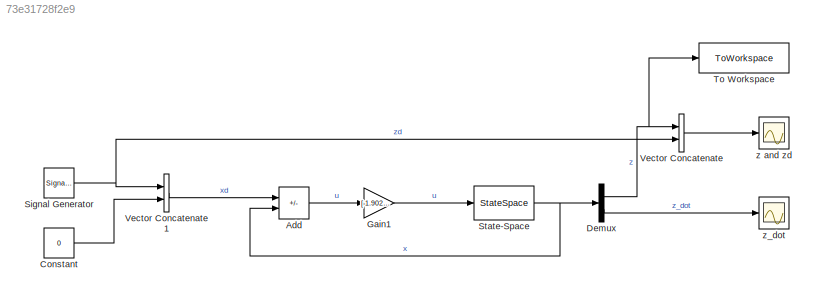
MODEL slx_73e31728f2e9
KIND model
CONFIG AbsTol = 10e-10
CONFIG EnableMultiTasking = off
CONFIG FixedStep = auto
CONFIG MaxStep = auto
CONFIG MinStep = auto
CONFIG RelTol = 10e-10
CONFIG SampleTimeConstraint = Unconstrained
CONFIG SolverName = VariableStepAuto
CONFIG StartTime = 0.0
CONFIG StopTime = 30
BLOCK [Sum] Add
  IconShape = rectangular
  Inputs = -|+
  Ports = [2, 1]
BLOCK [Constant] Constant
  Value = 0
BLOCK [Demux] Demux
  Outputs = 2
  Ports = [1, 2]
BLOCK [Gain] Gain1
  Gain = [-1.902345786272806 4.179322328410078]
  Multiplication = Matrix(K*u)
BLOCK [SignalGenerator] Signal Generator
  Amplitude = 0.03
  Frequency = 0.1
  Ports = [0, 1]
  VectorParams1D = off
  WaveForm = square
BLOCK [StateSpace] State-Space
  A = [0 1;0 -12.787723785166239]
  B = [0;2.102667153818049]
  C = [1 0;0 1]
  D = [0;0]
  InitialCondition = 0
  ParameterTunability = Unconstrained
  Ports = [1, 1]
BLOCK [ToWorkspace] To Workspace
  FixptAsFi = on
  MaxDataPoints = inf
  Ports = [1]
  SampleTime = -1
  SaveFormat = Timeseries
  VariableName = z
BLOCK [Concatenate] Vector Concatenate
  Ports = [2, 1]
BLOCK [Concatenate] Vector Concatenate1
  Ports = [2, 1]
BLOCK [Scope] z and zd
  Floating = off
  NumInputPorts = 1
  Ports = [1]
  ScopeSpecificationString = Simulink.scopes.TimeScopeBlockCfg('CurrentConfiguration', extmgr.ConfigurationSet(extmgr.Configuration('Core','General UI',true),extmgr.Configuration('Core','Source UI',true),extmgr.Configuration('Sources','WiredSimulink',true,'DataLoggingVariableName','ScopeData1'),extmgr.Configuration('Visuals','Time Domain',true,'SerializedDisplays',{struct('MinYLimReal','-0.0375','MaxYLimReal','0.0375','YLabel...<+1740ch>
BLOCK [Scope] z_dot
  Floating = off
  NumInputPorts = 1
  Ports = [1]
  ScopeSpecificationString = Simulink.scopes.TimeScopeBlockCfg('CurrentConfiguration', extmgr.ConfigurationSet(extmgr.Configuration('Core','General UI',true),extmgr.Configuration('Core','Source UI',true),extmgr.Configuration('Sources','WiredSimulink',true,'DataLoggingVariableName','ScopeData1'),extmgr.Configuration('Visuals','Time Domain',true,'SerializedDisplays',{struct('MinYLimReal','-0.13795','MaxYLimReal','0.13795','YLab...<+1362ch>
LINE Add:1 -> Gain1:1
LINE Constant:1 -> Vector Concatenate1:2
NET Demux:1 -> To Workspace:1, Vector Concatenate:1
LINE Demux:2 -> z_dot:1
LINE Gain1:1 -> State-Space:1
NET Signal Generator:1 -> Vector Concatenate1:1, Vector Concatenate:2
NET State-Space:1 -> Add:2, Demux:1
LINE Vector Concatenate1:1 -> Add:1
LINE Vector Concatenate:1 -> z and zd:1
note: NET lines group one-source signal fan-out (src -> all destinations, sorted); 1:1 wires keep LINE
